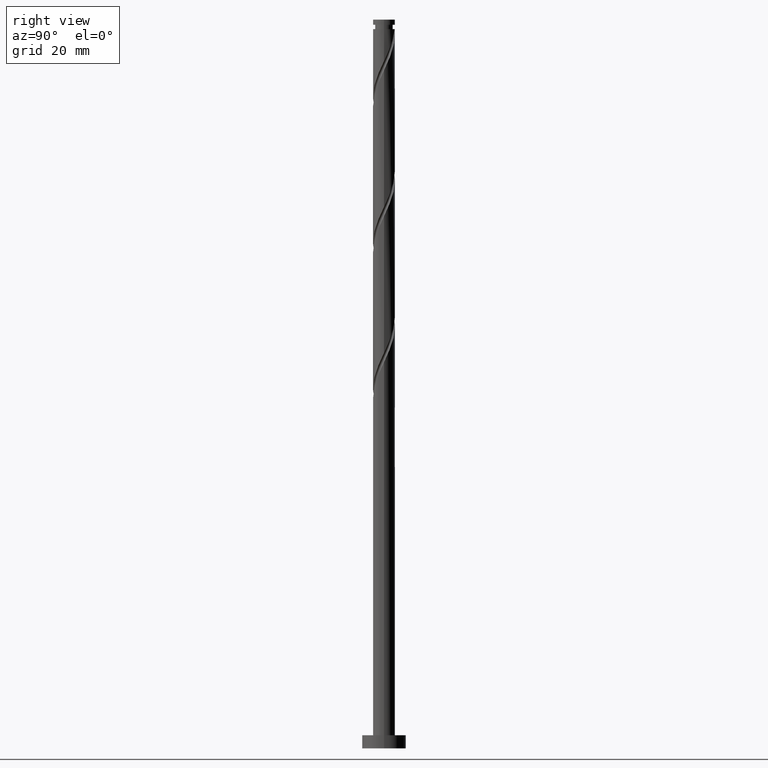
[diagram: clean part render]
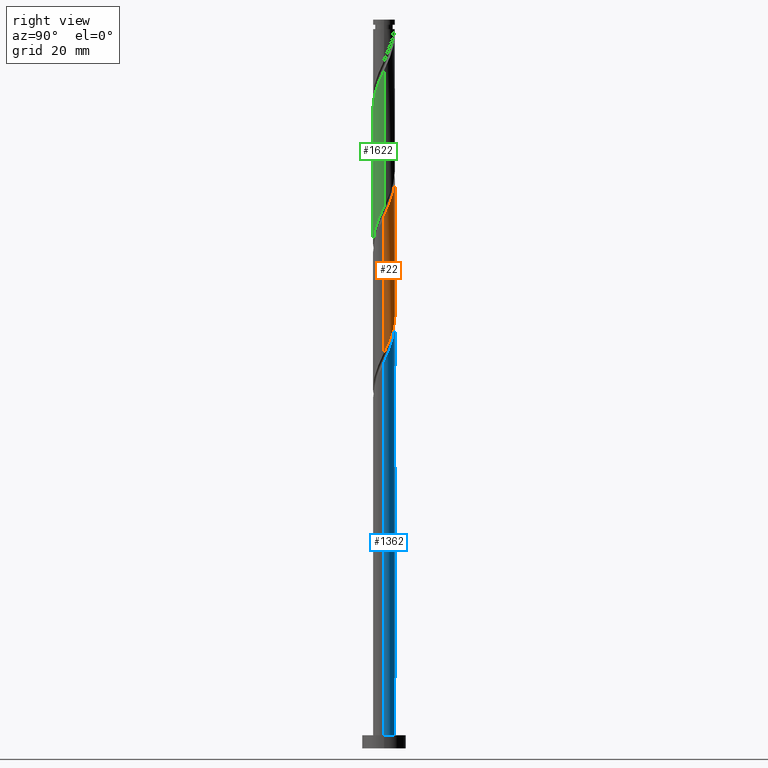
[diagram: same view with three faces highlighted in distinct colors, each labeled with its STEP entity id]
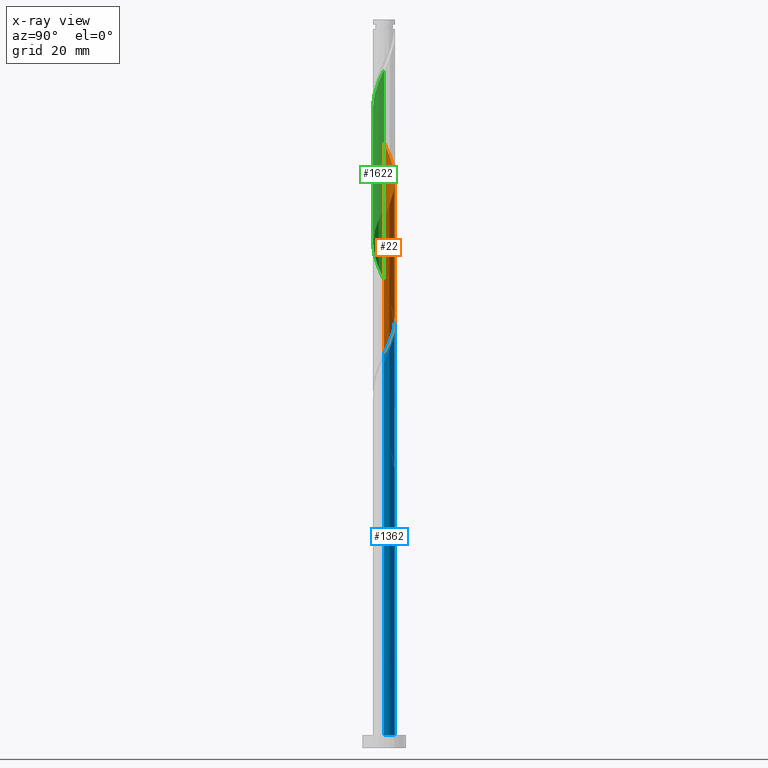
[diagram: x-ray of the same camera — body ghosted, the three highlighted faces saturated]
A machine part, right view with three faces highlighted in distinct colors.
The next image is the same camera in x-ray (body ghosted, the three faces saturated) — at least one of them is partly hidden behind the body in this view.
Their STEP definitions:

[orange] entity #22 — the highlighted cylindrical surface (edge-blend (fillet) strip) has radius 2.5 mm, axis along (-0, -0, -1).
#10 = CARTESIAN_POINT ( 'NONE',  ( 2.499999999999999112, -2.878603505396873590E-15, 90.39452221821650824 ) ) ;
#22 = ADVANCED_FACE ( 'NONE', ( #395 ), #497, .T. ) ;
#25 = AXIS2_PLACEMENT_3D ( 'NONE', #793, #1467, #1323 ) ;
#38 = CARTESIAN_POINT ( 'NONE',  ( 0.4820743581320903748, 2.475061956595794310, 128.9142888963397695 ) ) ;
#88 = CARTESIAN_POINT ( 'NONE',  ( -1.114648691668403746, 2.237757425227750119, 132.3865111185619696 ) ) ;
#108 = CARTESIAN_POINT ( 'NONE',  ( 2.500000000000003997, -5.831975933011805756E-16, 121.6007222411297164 ) ) ;
#118 = CARTESIAN_POINT ( 'NONE',  ( -1.106241244887207653, 2.265956240501270091, 101.1365111185620265 ) ) ;
#124 = EDGE_CURVE ( 'NONE', #1146, #1707, #540, .T. ) ;
#127 = CARTESIAN_POINT ( 'NONE',  ( 2.500000000000000000, 0.07685487914417803157, 90.55768590624462888 ) ) ;
#142 = CARTESIAN_POINT ( 'NONE',  ( -0.4820743581320875992, 2.475061956595790758, 99.74762222967312653 ) ) ;
#150 = CARTESIAN_POINT ( 'NONE',  ( -2.237757425227747010, 1.114648691668402858, 104.6087333407842124 ) ) ;
#175 = CARTESIAN_POINT ( 'NONE',  ( -0.1749450994641874590, 2.515496290581588745, 130.3031777852286552 ) ) ;
#215 = CARTESIAN_POINT ( 'NONE',  ( -2.370509098548532645, 0.7941578015096494303, 136.5531777852286552 ) ) ;
#229 = CARTESIAN_POINT ( 'NONE',  ( -2.265956240501272312, 1.106241244887210096, 135.8587333407842550 ) ) ;
#261 = CARTESIAN_POINT ( 'NONE',  ( 2.265956240501270536, 1.106241244887206321, 92.80317778522866945 ) ) ;
#312 = CARTESIAN_POINT ( 'NONE',  ( 2.450000000000003286, 0.4974937185533098716, 122.6642888963397695 ) ) ;
#341 = EDGE_LOOP ( 'NONE', ( #437, #731, #1045, #1030 ) ) ;
#368 = CARTESIAN_POINT ( 'NONE',  ( -2.084192795893800909, 1.380630431920286449, 135.1642888963397411 ) ) ;
#371 = CARTESIAN_POINT ( 'NONE',  ( -2.500000000000000000, 0.000000000000000000, 166.5200000000000102 ) ) ;
#387 = CARTESIAN_POINT ( 'NONE',  ( -0.7941578015096475429, 2.370509098548529536, 100.4420666741175410 ) ) ;
#395 = FACE_OUTER_BOUND ( 'NONE', #341, .T. ) ;
#399 = CARTESIAN_POINT ( 'NONE',  ( 2.370509098548529980, 0.7941578015096459886, 92.10873334078421237 ) ) ;
#422 = CARTESIAN_POINT ( 'NONE',  ( 0.1749450994641901791, 2.515496290581584304, 98.35873334078424080 ) ) ;
#437 = ORIENTED_EDGE ( 'NONE', *, *, #923, .F. ) ;
#441 = CARTESIAN_POINT ( 'NONE',  ( -2.500000000000003109, 3.372078392036312740E-15, 138.2673889077963736 ) ) ;
#456 = CARTESIAN_POINT ( 'NONE',  ( 2.500000000000003109, 0.2512594538148054668, 122.1341486103190022 ) ) ;
#466 =( BOUNDED_CURVE ( )  B_SPLINE_CURVE ( 2, ( #672, #1337, #1737, #682, #150, #825, #524, #1215, #1068, #118, #387, #142, #1608, #422, #922, #959, #532, #944, #688, #1491, #1480, #261, #399, #797, #1745, #127, #10 ),
 .UNSPECIFIED., .F., .T. ) 
 B_SPLINE_CURVE_WITH_KNOTS ( ( 3, 2, 2, 2, 2, 2, 2, 2, 2, 2, 2, 2, 2, 3 ),
 ( 0.6795317669814461281, 0.6875000000000000000, 0.6979166666666666297, 0.7083333333333333703, 0.7187500000000000000, 0.7291666666666666297, 0.7395833333333333703, 0.7500000000000000000, 0.7604166666666666297, 0.7708333333333333703, 0.7812500000000000000, 0.7916666666666666297, 0.8020833333333333703, 0.8045317669814464612 ),
 .UNSPECIFIED. ) 
 CURVE ( )  GEOMETRIC_REPRESENTATION_ITEM ( )  RATIONAL_B_SPLINE_CURVE ( ( 0.9062941362546422797, 0.9031415850403463619, 0.9090909090909219392, 0.9013135103398401959, 0.9090909090909219392, 0.9013135103398401959, 0.9090909090909219392, 0.9013135103398401959, 0.9090909090909219392, 0.9013135103398401959, 0.9090909090909219392, 0.9013135103398401959, 0.9090909090909219392, 0.9013135103398401959, 0.9090909090909219392, 0.9013135103398401959, 0.9090909090909219392, 0.9013135103398401959, 0.9090909090909219392, 0.9013135103398401959, 0.9090909090909219392, 0.9013135103398401959, 0.9090909090909219392, 0.9013135103398401959, 0.9090909090909219392, 0.9072628343904154402, 0.9062941362546420576 ) ) 
 REPRESENTATION_ITEM ( '' )  );
#481 = CARTESIAN_POINT ( 'NONE',  ( -1.902429351286330172, 1.655019618953364136, 134.4698444518953124 ) ) ;
#492 = CARTESIAN_POINT ( 'NONE',  ( -0.4974937185533094830, 2.450000000000003286, 130.9976222296730839 ) ) ;
#497 = CYLINDRICAL_SURFACE ( 'NONE', #25, 2.500000000000000000 ) ;
#524 = CARTESIAN_POINT ( 'NONE',  ( -1.873015379995219387, 1.655842198490352191, 103.2198444518953124 ) ) ;
#532 = CARTESIAN_POINT ( 'NONE',  ( 1.114648691668404634, 2.237757425227746122, 96.27540000745086957 ) ) ;
#534 =( BOUNDED_CURVE ( )  B_SPLINE_CURVE ( 2, ( #707, #456, #312, #568, #1110, #1678, #1545, #995, #1254, #863, #978, #38, #851, #175, #492, #750, #88, #646, #1296, #481, #368, #229, #215, #1031, #1190, #608, #1729 ),
 .UNSPECIFIED., .F., .T. ) 
 B_SPLINE_CURVE_WITH_KNOTS ( ( 3, 2, 2, 2, 2, 2, 2, 2, 2, 2, 2, 2, 2, 3 ),
 ( 0.4295317669814464612, 0.4375000000000000000, 0.4479166666666666297, 0.4583333333333333703, 0.4687500000000000000, 0.4791666666666666297, 0.4895833333333333703, 0.5000000000000000000, 0.5104166666666667407, 0.5208333333333332593, 0.5312500000000000000, 0.5416666666666667407, 0.5520833333333332593, 0.5545317669814462391 ),
 .UNSPECIFIED. ) 
 CURVE ( )  GEOMETRIC_REPRESENTATION_ITEM ( )  RATIONAL_B_SPLINE_CURVE ( ( 0.9062941362546486079, 0.9031415850403530232, 0.9090909090909286006, 0.9013135103398467463, 0.9090909090909286006, 0.9013135103398467463, 0.9090909090909286006, 0.9013135103398467463, 0.9090909090909286006, 0.9013135103398467463, 0.9090909090909286006, 0.9013135103398467463, 0.9090909090909286006, 0.9013135103398467463, 0.9090909090909286006, 0.9013135103398467463, 0.9090909090909286006, 0.9013135103398467463, 0.9090909090909286006, 0.9013135103398467463, 0.9090909090909286006, 0.9013135103398467463, 0.9090909090909286006, 0.9013135103398467463, 0.9090909090909286006, 0.9072628343904223236, 0.9062941362546488300 ) ) 
 REPRESENTATION_ITEM ( '' )  );
#540 = LINE ( 'NONE', #1082, #1276 ) ;
#568 = CARTESIAN_POINT ( 'NONE',  ( 2.384503709418420048, 0.8200423376424300637, 123.3587333407842266 ) ) ;
#608 = CARTESIAN_POINT ( 'NONE',  ( -2.500000000000003109, 0.07685487914418454025, 138.1042252197682387 ) ) ;
#610 = EDGE_CURVE ( 'NONE', #1411, #1370, #1298, .T. ) ;
#646 = CARTESIAN_POINT ( 'NONE',  ( -1.409255045694377539, 2.091011141037082410, 133.0809555630064835 ) ) ;
#649 = DIRECTION ( 'NONE',  ( -0.000000000000000000, -0.000000000000000000, -1.000000000000000000 ) ) ;
#672 = CARTESIAN_POINT ( 'NONE',  ( -2.499999999999998668, -4.740349668627579108E-15, 107.0611888848831796 ) ) ;
#682 = CARTESIAN_POINT ( 'NONE',  ( -2.384503709418414719, 0.8200423376424302857, 105.3031777852286837 ) ) ;
#688 = CARTESIAN_POINT ( 'NONE',  ( 1.655842198490352635, 1.873015379995218499, 94.88651111856199805 ) ) ;
#707 = CARTESIAN_POINT ( 'NONE',  ( 2.500000000000004441, -5.831975933011805756E-16, 121.6007222411297164 ) ) ;
#731 = ORIENTED_EDGE ( 'NONE', *, *, #124, .T. ) ;
#750 = CARTESIAN_POINT ( 'NONE',  ( -0.8200423376424307298, 2.384503709418420048, 131.6920666741175694 ) ) ;
#793 = CARTESIAN_POINT ( 'NONE',  ( 0.000000000000000000, 0.000000000000000000, 166.5200000000000102 ) ) ;
#797 = CARTESIAN_POINT ( 'NONE',  ( 2.475061956595790758, 0.4820743581320861004, 91.41428889633982635 ) ) ;
#825 = CARTESIAN_POINT ( 'NONE',  ( -2.091011141037078858, 1.409255045694376873, 103.9142888963397837 ) ) ;
#851 = CARTESIAN_POINT ( 'NONE',  ( 0.1535646293339514856, 2.495279123588689973, 129.6087333407841982 ) ) ;
#863 = CARTESIAN_POINT ( 'NONE',  ( 1.106241244887210762, 2.265956240501272312, 127.5254000074509406 ) ) ;
#867 = VECTOR ( 'NONE', #649, 1000.000000000000000 ) ;
#922 = CARTESIAN_POINT ( 'NONE',  ( 0.4974937185533105932, 2.449999999999999289, 97.66428889633976951 ) ) ;
#923 = EDGE_CURVE ( 'NONE', #1146, #1411, #534, .T. ) ;
#944 = CARTESIAN_POINT ( 'NONE',  ( 1.409255045694377539, 2.091011141037078858, 95.58095556300644091 ) ) ;
#959 = CARTESIAN_POINT ( 'NONE',  ( 0.8200423376424322841, 2.384503709418414275, 96.96984445189534085 ) ) ;
#978 = CARTESIAN_POINT ( 'NONE',  ( 0.7941578015096506515, 2.370509098548531757, 128.2198444518953124 ) ) ;
#995 = CARTESIAN_POINT ( 'NONE',  ( 1.655019618953364802, 1.902429351286329728, 126.1365111185620265 ) ) ;
#1030 = ORIENTED_EDGE ( 'NONE', *, *, #610, .F. ) ;
#1031 = CARTESIAN_POINT ( 'NONE',  ( -2.475061956595794310, 0.4820743581320888760, 137.2476222296731407 ) ) ;
#1040 = CARTESIAN_POINT ( 'NONE',  ( 2.499999999999999556, -2.878603505396873985E-15, 90.39452221821650824 ) ) ;
#1045 = ORIENTED_EDGE ( 'NONE', *, *, #1288, .F. ) ;
#1068 = CARTESIAN_POINT ( 'NONE',  ( -1.380630431920284007, 2.084192795893798689, 101.8309555630064409 ) ) ;
#1082 = CARTESIAN_POINT ( 'NONE',  ( 2.500000000000000000, 3.061616997868383141E-16, 166.5200000000000102 ) ) ;
#1110 = CARTESIAN_POINT ( 'NONE',  ( 2.237757425227751007, 1.114648691668402858, 124.0531777852286694 ) ) ;
#1146 = VERTEX_POINT ( 'NONE', #108 ) ;
#1190 = CARTESIAN_POINT ( 'NONE',  ( -2.495279123588689973, 0.1535646293339499036, 137.9420666741175410 ) ) ;
#1215 = CARTESIAN_POINT ( 'NONE',  ( -1.655019618953361027, 1.902429351286328618, 102.5254000074508838 ) ) ;
#1254 = CARTESIAN_POINT ( 'NONE',  ( 1.380630431920286894, 2.084192795893800465, 126.8309555630064125 ) ) ;
#1276 = VECTOR ( 'NONE', #1624, 1000.000000000000000 ) ;
#1288 = EDGE_CURVE ( 'NONE', #1370, #1707, #466, .T. ) ;
#1296 = CARTESIAN_POINT ( 'NONE',  ( -1.655842198490353301, 1.873015379995222274, 133.7754000074508554 ) ) ;
#1298 = LINE ( 'NONE', #371, #867 ) ;
#1323 = DIRECTION ( 'NONE',  ( -1.000000000000000000, 0.000000000000000000, 0.000000000000000000 ) ) ;
#1337 = CARTESIAN_POINT ( 'NONE',  ( -2.500000000000000888, 0.2512594538147974732, 106.5277625156939365 ) ) ;
#1370 = VERTEX_POINT ( 'NONE', #1408 ) ;
#1408 = CARTESIAN_POINT ( 'NONE',  ( -2.499999999999998668, -4.740349668627579108E-15, 107.0611888848831796 ) ) ;
#1411 = VERTEX_POINT ( 'NONE', #441 ) ;
#1467 = DIRECTION ( 'NONE',  ( -0.000000000000000000, -0.000000000000000000, -1.000000000000000000 ) ) ;
#1480 = CARTESIAN_POINT ( 'NONE',  ( 2.084192795893798689, 1.380630431920283785, 93.49762222967309810 ) ) ;
#1491 = CARTESIAN_POINT ( 'NONE',  ( 1.902429351286329062, 1.655019618953360361, 94.19206667411756939 ) ) ;
#1545 = CARTESIAN_POINT ( 'NONE',  ( 1.873015379995223606, 1.655842198490352857, 125.4420666741175552 ) ) ;
#1608 = CARTESIAN_POINT ( 'NONE',  ( -0.1535646293339486268, 2.495279123588685977, 99.05317778522866945 ) ) ;
#1624 = DIRECTION ( 'NONE',  ( -0.000000000000000000, -0.000000000000000000, -1.000000000000000000 ) ) ;
#1678 = CARTESIAN_POINT ( 'NONE',  ( 2.091011141037083298, 1.409255045694376873, 124.7476222296731123 ) ) ;
#1707 = VERTEX_POINT ( 'NONE', #1040 ) ;
#1729 = CARTESIAN_POINT ( 'NONE',  ( -2.500000000000003109, 3.372078392036312740E-15, 138.2673889077963736 ) ) ;
#1737 = CARTESIAN_POINT ( 'NONE',  ( -2.449999999999999289, 0.4974937185533100381, 105.9976222296731123 ) ) ;
#1745 = CARTESIAN_POINT ( 'NONE',  ( 2.495279123588685977, 0.1535646293339474888, 90.71984445189534085 ) ) ;

[blue] entity #1362 — the highlighted cylindrical surface (edge-blend (fillet) strip) has radius 2.5 mm, axis along (-0, -0, -1).
#3 = CARTESIAN_POINT ( 'NONE',  ( -2.091011141037078858, 1.409255045694376873, 70.58095556300646933 ) ) ;
#13 = VERTEX_POINT ( 'NONE', #774 ) ;
#14 = CARTESIAN_POINT ( 'NONE',  ( -0.8200423376424307298, 2.384503709418420048, 98.35873334078424080 ) ) ;
#17 = CARTESIAN_POINT ( 'NONE',  ( -1.106241244887207653, 2.265956240501270091, 67.80317778522868366 ) ) ;
#26 = CARTESIAN_POINT ( 'NONE',  ( 0.000000000000000000, 0.000000000000000000, 166.5200000000000102 ) ) ;
#71 = ORIENTED_EDGE ( 'NONE', *, *, #160, .F. ) ;
#73 = CARTESIAN_POINT ( 'NONE',  ( -2.495279123588689973, 0.1535646293339499036, 71.27540000745086957 ) ) ;
#81 = CARTESIAN_POINT ( 'NONE',  ( 2.500000000000002665, 0.2512594538148071877, 88.80081527698565935 ) ) ;
#85 = EDGE_CURVE ( 'NONE', #1180, #1402, #1691, .T. ) ;
#96 = LINE ( 'NONE', #633, #502 ) ;
#98 = ORIENTED_EDGE ( 'NONE', *, *, #710, .F. ) ;
#132 = DIRECTION ( 'NONE',  ( -1.000000000000000000, 0.000000000000000000, 0.000000000000000000 ) ) ;
#134 = CARTESIAN_POINT ( 'NONE',  ( -2.384503709418414719, 0.8200423376424302857, 71.96984445189536928 ) ) ;
#152 = ORIENTED_EDGE ( 'NONE', *, *, #478, .F. ) ;
#157 = FACE_OUTER_BOUND ( 'NONE', #1094, .T. ) ;
#160 = EDGE_CURVE ( 'NONE', #1315, #174, #96, .T. ) ;
#174 = VERTEX_POINT ( 'NONE', #910 ) ;
#202 = CARTESIAN_POINT ( 'NONE',  ( -0.8200423376424307298, 2.384503709418420048, 65.02540000745089799 ) ) ;
#267 = CARTESIAN_POINT ( 'NONE',  ( 0.000000000000000000, 0.000000000000000000, 64.33095556300644091 ) ) ;
#270 = CARTESIAN_POINT ( 'NONE',  ( 0.4974937185533105932, 2.449999999999999289, 64.33095556300644091 ) ) ;
#287 = CARTESIAN_POINT ( 'NONE',  ( -2.475061956595794310, 0.4820743581320888760, 103.9142888963397837 ) ) ;
#305 = CARTESIAN_POINT ( 'NONE',  ( -1.114648691668403746, 2.237757425227750119, 65.71984445189531243 ) ) ;
#336 = CARTESIAN_POINT ( 'NONE',  ( -2.084192795893800909, 1.380630431920286449, 68.49762222967309810 ) ) ;
#344 = CARTESIAN_POINT ( 'NONE',  ( 1.106241244887210762, 2.265956240501272312, 94.19206667411755518 ) ) ;
#346 =( BOUNDED_CURVE ( )  B_SPLINE_CURVE ( 2, ( #1584, #81, #899, #1451, #1160, #526, #1474, #1702, #769, #344, #484, #1629, #962, #559, #1637, #14, #1364, #391, #953, #938, #926, #1101, #1087, #287, #409, #1243, #1484 ),
 .UNSPECIFIED., .F., .T. ) 
 B_SPLINE_CURVE_WITH_KNOTS ( ( 3, 2, 2, 2, 2, 2, 2, 2, 2, 2, 2, 2, 2, 3 ),
 ( 0.1795317669814465167, 0.1875000000000000000, 0.1979166666666666297, 0.2083333333333333703, 0.2187500000000000000, 0.2291666666666666297, 0.2395833333333333703, 0.2500000000000000000, 0.2604166666666666297, 0.2708333333333333703, 0.2812500000000000000, 0.2916666666666666297, 0.3020833333333333703, 0.3045317669814464612 ),
 .UNSPECIFIED. ) 
 CURVE ( )  GEOMETRIC_REPRESENTATION_ITEM ( )  RATIONAL_B_SPLINE_CURVE ( ( 0.9062941362546486079, 0.9031415850403531342, 0.9090909090909286006, 0.9013135103398467463, 0.9090909090909286006, 0.9013135103398467463, 0.9090909090909286006, 0.9013135103398467463, 0.9090909090909286006, 0.9013135103398467463, 0.9090909090909286006, 0.9013135103398467463, 0.9090909090909286006, 0.9013135103398467463, 0.9090909090909286006, 0.9013135103398467463, 0.9090909090909286006, 0.9013135103398467463, 0.9090909090909286006, 0.9013135103398467463, 0.9090909090909286006, 0.9013135103398467463, 0.9090909090909286006, 0.9013135103398467463, 0.9090909090909286006, 0.9072628343904221015, 0.9062941362546486079 ) ) 
 REPRESENTATION_ITEM ( '' )  );
#352 = LINE ( 'NONE', #780, #1444 ) ;
#391 = CARTESIAN_POINT ( 'NONE',  ( -1.409255045694377539, 2.091011141037082410, 99.74762222967309810 ) ) ;
#409 = CARTESIAN_POINT ( 'NONE',  ( -2.495279123588689973, 0.1535646293339499036, 104.6087333407841982 ) ) ;
#449 = CARTESIAN_POINT ( 'NONE',  ( -1.902429351286330172, 1.655019618953364136, 67.80317778522866945 ) ) ;
#473 = CARTESIAN_POINT ( 'NONE',  ( -2.265956240501272312, 1.106241244887210096, 69.19206667411756939 ) ) ;
#477 =( BOUNDED_CURVE ( )  B_SPLINE_CURVE ( 2, ( #609, #202, #305, #1256, #843, #449, #336, #473, #1414, #1017, #73, #1547, #734 ),
 .UNSPECIFIED., .F., .T. ) 
 B_SPLINE_CURVE_WITH_KNOTS ( ( 3, 2, 2, 2, 2, 2, 3 ),
 ( 0.000000000000000000, 0.01041666666666662966, 0.02083333333333337034, 0.03125000000000000000, 0.04166666666666662966, 0.05208333333333337034, 0.05453176698144644730 ),
 .UNSPECIFIED. ) 
 CURVE ( )  GEOMETRIC_REPRESENTATION_ITEM ( )  RATIONAL_B_SPLINE_CURVE ( ( 0.9090909090909286006, 0.9013135103398467463, 0.9090909090909286006, 0.9013135103398467463, 0.9090909090909286006, 0.9013135103398467463, 0.9090909090909286006, 0.9013135103398467463, 0.9090909090909286006, 0.9013135103398467463, 0.9090909090909286006, 0.9072628343904221015, 0.9062941362546486079 ) ) 
 REPRESENTATION_ITEM ( '' )  );
#478 = EDGE_CURVE ( 'NONE', #1180, #839, #477, .T. ) ;
#484 = CARTESIAN_POINT ( 'NONE',  ( 0.7941578015096506515, 2.370509098548531757, 94.88651111856196962 ) ) ;
#502 = VECTOR ( 'NONE', #1177, 1000.000000000000000 ) ;
#526 = CARTESIAN_POINT ( 'NONE',  ( 2.091011141037083298, 1.409255045694376873, 91.41428889633981214 ) ) ;
#535 = VERTEX_POINT ( 'NONE', #1679 ) ;
#542 = CARTESIAN_POINT ( 'NONE',  ( -0.1535646293339486268, 2.495279123588685977, 65.71984445189532664 ) ) ;
#550 = CARTESIAN_POINT ( 'NONE',  ( -2.237757425227747010, 1.114648691668402858, 71.27540000745085536 ) ) ;
#556 = CARTESIAN_POINT ( 'NONE',  ( -0.7941578015096475429, 2.370509098548529536, 67.10873334078422658 ) ) ;
#559 = CARTESIAN_POINT ( 'NONE',  ( -0.1749450994641874590, 2.515496290581588745, 96.96984445189534085 ) ) ;
#565 = CARTESIAN_POINT ( 'NONE',  ( 0.000000000000000000, 0.000000000000000000, 3.000000000000000000 ) ) ;
#578 = EDGE_CURVE ( 'NONE', #13, #1157, #352, .T. ) ;
#588 = DIRECTION ( 'NONE',  ( 0.000000000000000000, 0.000000000000000000, 1.000000000000000000 ) ) ;
#609 = CARTESIAN_POINT ( 'NONE',  ( -0.4974937185533096495, 2.450000000000003286, 64.33095556300644091 ) ) ;
#633 = CARTESIAN_POINT ( 'NONE',  ( -2.500000000000000000, 0.000000000000000000, 166.5200000000000102 ) ) ;
#665 = CARTESIAN_POINT ( 'NONE',  ( -2.499999999999998668, 2.235590774321208427E-15, 73.72785555154982262 ) ) ;
#695 = CYLINDRICAL_SURFACE ( 'NONE', #1245, 2.500000000000000000 ) ;
#703 = CIRCLE ( 'NONE', #729, 2.500000000000000000 ) ;
#710 = EDGE_CURVE ( 'NONE', #13, #1315, #346, .T. ) ;
#729 = AXIS2_PLACEMENT_3D ( 'NONE', #565, #588, #1106 ) ;
#734 = CARTESIAN_POINT ( 'NONE',  ( -2.500000000000003997, -7.925505755118609627E-15, 71.60072224112973061 ) ) ;
#743 = CARTESIAN_POINT ( 'NONE',  ( -2.500000000000000000, 0.000000000000000000, 166.5200000000000102 ) ) ;
#769 = CARTESIAN_POINT ( 'NONE',  ( 1.380630431920286894, 2.084192795893800465, 93.49762222967312653 ) ) ;
#774 = CARTESIAN_POINT ( 'NONE',  ( 2.500000000000003997, -5.831975933011805756E-16, 88.26738890779638780 ) ) ;
#780 = CARTESIAN_POINT ( 'NONE',  ( 2.500000000000000000, 3.061616997868383141E-16, 166.5200000000000102 ) ) ;
#805 = DIRECTION ( 'NONE',  ( 0.000000000000000000, -0.000000000000000000, -1.000000000000000000 ) ) ;
#832 = DIRECTION ( 'NONE',  ( -0.000000000000000000, -0.000000000000000000, -1.000000000000000000 ) ) ;
#839 = VERTEX_POINT ( 'NONE', #1385 ) ;
#843 = CARTESIAN_POINT ( 'NONE',  ( -1.655842198490353301, 1.873015379995222274, 67.10873334078421237 ) ) ;
#899 = CARTESIAN_POINT ( 'NONE',  ( 2.450000000000003286, 0.4974937185533098716, 89.33095556300642670 ) ) ;
#910 = CARTESIAN_POINT ( 'NONE',  ( -2.499999999999998668, 2.235590774321208427E-15, 73.72785555154980841 ) ) ;
#926 = CARTESIAN_POINT ( 'NONE',  ( -2.084192795893800909, 1.380630431920286449, 101.8309555630064551 ) ) ;
#935 = CARTESIAN_POINT ( 'NONE',  ( 0.1749450994641901791, 2.515496290581584304, 65.02540000745089799 ) ) ;
#938 = CARTESIAN_POINT ( 'NONE',  ( -1.902429351286330172, 1.655019618953364136, 101.1365111185620123 ) ) ;
#953 = CARTESIAN_POINT ( 'NONE',  ( -1.655842198490353301, 1.873015379995222274, 100.4420666741175552 ) ) ;
#961 = ORIENTED_EDGE ( 'NONE', *, *, #1153, .F. ) ;
#962 = CARTESIAN_POINT ( 'NONE',  ( 0.1535646293339514856, 2.495279123588689973, 96.27540000745086957 ) ) ;
#983 = DIRECTION ( 'NONE',  ( -1.000000000000000000, 0.000000000000000000, 0.000000000000000000 ) ) ;
#1015 = DIRECTION ( 'NONE',  ( -0.000000000000000000, -0.000000000000000000, -1.000000000000000000 ) ) ;
#1017 = CARTESIAN_POINT ( 'NONE',  ( -2.475061956595794310, 0.4820743581320888760, 70.58095556300645512 ) ) ;
#1043 = AXIS2_PLACEMENT_3D ( 'NONE', #267, #805, #132 ) ;
#1077 = CARTESIAN_POINT ( 'NONE',  ( -1.655019618953361027, 1.902429351286328618, 69.19206667411758360 ) ) ;
#1087 = CARTESIAN_POINT ( 'NONE',  ( -2.370509098548532645, 0.7941578015096494303, 103.2198444518952982 ) ) ;
#1092 = CARTESIAN_POINT ( 'NONE',  ( -1.380630431920284007, 2.084192795893798689, 68.49762222967311232 ) ) ;
#1094 = EDGE_LOOP ( 'NONE', ( #98, #1117, #1570, #961, #152, #1189, #1227, #71 ) ) ;
#1101 = CARTESIAN_POINT ( 'NONE',  ( -2.265956240501272312, 1.106241244887210096, 102.5254000074508980 ) ) ;
#1106 = DIRECTION ( 'NONE',  ( 1.000000000000000000, 0.000000000000000000, 0.000000000000000000 ) ) ;
#1117 = ORIENTED_EDGE ( 'NONE', *, *, #578, .T. ) ;
#1147 = LINE ( 'NONE', #743, #1154 ) ;
#1153 = EDGE_CURVE ( 'NONE', #839, #535, #1147, .T. ) ;
#1154 = VECTOR ( 'NONE', #1015, 1000.000000000000000 ) ;
#1157 = VERTEX_POINT ( 'NONE', #1600 ) ;
#1160 = CARTESIAN_POINT ( 'NONE',  ( 2.237757425227751007, 1.114648691668402858, 90.71984445189531243 ) ) ;
#1177 = DIRECTION ( 'NONE',  ( -0.000000000000000000, -0.000000000000000000, -1.000000000000000000 ) ) ;
#1180 = VERTEX_POINT ( 'NONE', #1427 ) ;
#1189 = ORIENTED_EDGE ( 'NONE', *, *, #85, .T. ) ;
#1207 = CARTESIAN_POINT ( 'NONE',  ( -1.873015379995219387, 1.655842198490352191, 69.88651111856201226 ) ) ;
#1227 = ORIENTED_EDGE ( 'NONE', *, *, #1301, .F. ) ;
#1232 = CARTESIAN_POINT ( 'NONE',  ( -2.449999999999999289, 0.4974937185533100381, 72.66428889633975530 ) ) ;
#1243 = CARTESIAN_POINT ( 'NONE',  ( -2.500000000000003997, 0.07685487914418023814, 104.7708918864349101 ) ) ;
#1245 = AXIS2_PLACEMENT_3D ( 'NONE', #26, #832, #983 ) ;
#1256 = CARTESIAN_POINT ( 'NONE',  ( -1.409255045694377539, 2.091011141037082410, 66.41428889633979793 ) ) ;
#1301 = EDGE_CURVE ( 'NONE', #174, #1402, #1439, .T. ) ;
#1315 = VERTEX_POINT ( 'NONE', #1641 ) ;
#1362 = ADVANCED_FACE ( 'NONE', ( #157 ), #695, .T. ) ;
#1364 = CARTESIAN_POINT ( 'NONE',  ( -1.114648691668403746, 2.237757425227750119, 99.05317778522868366 ) ) ;
#1385 = CARTESIAN_POINT ( 'NONE',  ( -2.500000000000003553, -7.925505755118609627E-15, 71.60072224112973061 ) ) ;
#1402 = VERTEX_POINT ( 'NONE', #1520 ) ;
#1414 = CARTESIAN_POINT ( 'NONE',  ( -2.370509098548532645, 0.7941578015096494303, 69.88651111856199805 ) ) ;
#1427 = CARTESIAN_POINT ( 'NONE',  ( -0.4974937185533096495, 2.450000000000003286, 64.33095556300644091 ) ) ;
#1439 =( BOUNDED_CURVE ( )  B_SPLINE_CURVE ( 2, ( #665, #1499, #1232, #134, #550, #3, #1207, #1077, #1092, #17, #556, #1617, #542, #935, #270 ),
 .UNSPECIFIED., .F., .T. ) 
 B_SPLINE_CURVE_WITH_KNOTS ( ( 3, 2, 2, 2, 2, 2, 2, 3 ),
 ( 0.9295317669814464612, 0.9375000000000000000, 0.9479166666666666297, 0.9583333333333333703, 0.9687500000000000000, 0.9791666666666666297, 0.9895833333333333703, 1.000000000000000000 ),
 .UNSPECIFIED. ) 
 CURVE ( )  GEOMETRIC_REPRESENTATION_ITEM ( )  RATIONAL_B_SPLINE_CURVE ( ( 0.9062941362546420576, 0.9031415850403465839, 0.9090909090909219392, 0.9013135103398401959, 0.9090909090909219392, 0.9013135103398401959, 0.9090909090909219392, 0.9013135103398401959, 0.9090909090909219392, 0.9013135103398401959, 0.9090909090909219392, 0.9013135103398401959, 0.9090909090909219392, 0.9013135103398401959, 0.9090909090909219392 ) ) 
 REPRESENTATION_ITEM ( '' )  );
#1444 = VECTOR ( 'NONE', #1719, 1000.000000000000000 ) ;
#1451 = CARTESIAN_POINT ( 'NONE',  ( 2.384503709418420048, 0.8200423376424300637, 90.02540000745091220 ) ) ;
#1474 = CARTESIAN_POINT ( 'NONE',  ( 1.873015379995223606, 1.655842198490352857, 92.10873334078416974 ) ) ;
#1484 = CARTESIAN_POINT ( 'NONE',  ( -2.500000000000003997, 6.018898238557055436E-15, 104.9340555744630450 ) ) ;
#1499 = CARTESIAN_POINT ( 'NONE',  ( -2.499999999999998224, 0.2512594538148077983, 73.19442918236056528 ) ) ;
#1520 = CARTESIAN_POINT ( 'NONE',  ( 0.4974937185533105932, 2.449999999999999289, 64.33095556300644091 ) ) ;
#1547 = CARTESIAN_POINT ( 'NONE',  ( -2.500000000000003997, 0.07685487914418066835, 71.43755855310156733 ) ) ;
#1570 = ORIENTED_EDGE ( 'NONE', *, *, #1621, .T. ) ;
#1584 = CARTESIAN_POINT ( 'NONE',  ( 2.500000000000004441, -5.831975933011805756E-16, 88.26738890779638780 ) ) ;
#1600 = CARTESIAN_POINT ( 'NONE',  ( 2.500000000000000000, 3.061616997868383141E-16, 3.000000000000000000 ) ) ;
#1617 = CARTESIAN_POINT ( 'NONE',  ( -0.4820743581320875992, 2.475061956595790758, 66.41428889633979793 ) ) ;
#1621 = EDGE_CURVE ( 'NONE', #1157, #535, #703, .T. ) ;
#1629 = CARTESIAN_POINT ( 'NONE',  ( 0.4820743581320903748, 2.475061956595794310, 95.58095556300645512 ) ) ;
#1637 = CARTESIAN_POINT ( 'NONE',  ( -0.4974937185533094830, 2.450000000000003286, 97.66428889633976951 ) ) ;
#1641 = CARTESIAN_POINT ( 'NONE',  ( -2.500000000000003553, 6.018898238557055436E-15, 104.9340555744630450 ) ) ;
#1679 = CARTESIAN_POINT ( 'NONE',  ( -2.500000000000000000, 0.000000000000000000, 3.000000000000000000 ) ) ;
#1691 = CIRCLE ( 'NONE', #1043, 2.500000000000000000 ) ;
#1702 = CARTESIAN_POINT ( 'NONE',  ( 1.655019618953364802, 1.902429351286329728, 92.80317778522865524 ) ) ;
#1719 = DIRECTION ( 'NONE',  ( -0.000000000000000000, -0.000000000000000000, -1.000000000000000000 ) ) ;

[green] entity #1622 — the highlighted cylindrical surface (edge-blend (fillet) strip) has radius 2.5 mm, axis along (-0, -0, -1).
#6 = CARTESIAN_POINT ( 'NONE',  ( -1.409255045694376873, -2.091011141037078858, 112.2476222296731123 ) ) ;
#20 = CARTESIAN_POINT ( 'NONE',  ( 1.380630431920282897, -2.084192795893798689, 118.4976222296731123 ) ) ;
#39 = CARTESIAN_POINT ( 'NONE',  ( -1.106241244887210540, -2.265956240501271868, 144.1920666741175694 ) ) ;
#51 = CARTESIAN_POINT ( 'NONE',  ( 1.409255045694376873, -2.091011141037083298, 149.7476222296731407 ) ) ;
#57 = ORIENTED_EDGE ( 'NONE', *, *, #1513, .F. ) ;
#59 = CARTESIAN_POINT ( 'NONE',  ( 1.902429351286330172, -1.655019618953364136, 151.1365111185620265 ) ) ;
#65 = CARTESIAN_POINT ( 'NONE',  ( -2.084192795893798689, -1.380630431920284007, 110.1642888963397695 ) ) ;
#68 = CARTESIAN_POINT ( 'NONE',  ( -2.384503709418420048, -0.8200423376424301747, 140.0254000074508838 ) ) ;
#145 = CARTESIAN_POINT ( 'NONE',  ( 2.499999999999999112, -0.2512594538148046897, 123.1944291823605795 ) ) ;
#161 = CARTESIAN_POINT ( 'NONE',  ( -0.4974937185533100381, -2.449999999999999289, 114.3309555630064125 ) ) ;
#176 = CARTESIAN_POINT ( 'NONE',  ( -0.1535646293339500146, -2.495279123588689973, 146.2754000074509122 ) ) ;
#180 = CARTESIAN_POINT ( 'NONE',  ( 2.500000000000000000, 3.061616997868383141E-16, 166.5200000000000102 ) ) ;
#236 =( BOUNDED_CURVE ( )  B_SPLINE_CURVE ( 2, ( #1422, #709, #1267, #68, #726, #980, #989, #1533, #717, #39, #1557, #575, #176, #1144, #1120, #1662, #1540, #51, #586, #59, #320, #858, #1405, #1275, #595, #604, #997 ),
 .UNSPECIFIED., .F., .T. ) 
 B_SPLINE_CURVE_WITH_KNOTS ( ( 3, 2, 2, 2, 2, 2, 2, 2, 2, 2, 2, 2, 2, 3 ),
 ( 0.5545317669814462391, 0.5625000000000000000, 0.5729166666666667407, 0.5833333333333332593, 0.5937500000000000000, 0.6041666666666667407, 0.6145833333333332593, 0.6250000000000000000, 0.6354166666666667407, 0.6458333333333332593, 0.6562500000000000000, 0.6666666666666667407, 0.6770833333333332593, 0.6795317669814460171 ),
 .UNSPECIFIED. ) 
 CURVE ( )  GEOMETRIC_REPRESENTATION_ITEM ( )  RATIONAL_B_SPLINE_CURVE ( ( 0.9062941362546488300, 0.9031415850403530232, 0.9090909090909286006, 0.9013135103398467463, 0.9090909090909286006, 0.9013135103398467463, 0.9090909090909286006, 0.9013135103398467463, 0.9090909090909286006, 0.9013135103398467463, 0.9090909090909286006, 0.9013135103398467463, 0.9090909090909286006, 0.9013135103398467463, 0.9090909090909286006, 0.9013135103398467463, 0.9090909090909286006, 0.9013135103398467463, 0.9090909090909286006, 0.9013135103398467463, 0.9090909090909286006, 0.9013135103398467463, 0.9090909090909286006, 0.9013135103398467463, 0.9090909090909286006, 0.9072628343904225456, 0.9062941362546490520 ) ) 
 REPRESENTATION_ITEM ( '' )  );
#294 = CARTESIAN_POINT ( 'NONE',  ( 0.1535646293339475721, -2.495279123588685977, 115.7198444518953409 ) ) ;
#302 = CARTESIAN_POINT ( 'NONE',  ( -2.495279123588685977, -0.1535646293339484048, 107.3865111185620123 ) ) ;
#320 = CARTESIAN_POINT ( 'NONE',  ( 2.084192795893800021, -1.380630431920287338, 151.8309555630064551 ) ) ;
#371 = CARTESIAN_POINT ( 'NONE',  ( -2.500000000000000000, 0.000000000000000000, 166.5200000000000102 ) ) ;
#402 = CARTESIAN_POINT ( 'NONE',  ( 1.655019618953360361, -1.902429351286328840, 119.1920666741175978 ) ) ;
#435 = DIRECTION ( 'NONE',  ( -0.000000000000000000, -0.000000000000000000, -1.000000000000000000 ) ) ;
#441 = CARTESIAN_POINT ( 'NONE',  ( -2.500000000000003109, 3.372078392036312740E-15, 138.2673889077963736 ) ) ;
#446 = VERTEX_POINT ( 'NONE', #1127 ) ;
#505 = EDGE_CURVE ( 'NONE', #1411, #1610, #236, .T. ) ;
#539 = AXIS2_PLACEMENT_3D ( 'NONE', #1674, #435, #991 ) ;
#545 = CARTESIAN_POINT ( 'NONE',  ( -1.655842198490352413, -1.873015379995219165, 111.5531777852286552 ) ) ;
#553 = CARTESIAN_POINT ( 'NONE',  ( 2.091011141037078858, -1.409255045694377539, 120.5809555630064693 ) ) ;
#575 = CARTESIAN_POINT ( 'NONE',  ( -0.4820743581320890425, -2.475061956595794310, 145.5809555630065120 ) ) ;
#586 = CARTESIAN_POINT ( 'NONE',  ( 1.655842198490353079, -1.873015379995223162, 150.4420666741174841 ) ) ;
#595 = CARTESIAN_POINT ( 'NONE',  ( 2.495279123588689973, -0.1535646293339512636, 154.6087333407841982 ) ) ;
#603 = CARTESIAN_POINT ( 'NONE',  ( -1.902429351286329062, -1.655019618953360361, 110.8587333407842408 ) ) ;
#604 = CARTESIAN_POINT ( 'NONE',  ( 2.500000000000002220, -0.07685487914419299182, 154.7708918864348675 ) ) ;
#610 = EDGE_CURVE ( 'NONE', #1411, #1370, #1298, .T. ) ;
#649 = DIRECTION ( 'NONE',  ( -0.000000000000000000, -0.000000000000000000, -1.000000000000000000 ) ) ;
#674 = CARTESIAN_POINT ( 'NONE',  ( 0.7941578015096470988, -2.370509098548529980, 117.1087333407842266 ) ) ;
#684 = CARTESIAN_POINT ( 'NONE',  ( 1.873015379995219165, -1.655842198490352857, 119.8865111185619696 ) ) ;
#706 = ORIENTED_EDGE ( 'NONE', *, *, #760, .F. ) ;
#709 = CARTESIAN_POINT ( 'NONE',  ( -2.500000000000004885, -0.2512594538148028578, 138.8008152769857020 ) ) ;
#715 = CARTESIAN_POINT ( 'NONE',  ( -2.499999999999998668, -4.740349668627579108E-15, 107.0611888848831796 ) ) ;
#717 = CARTESIAN_POINT ( 'NONE',  ( -1.380630431920286449, -2.084192795893800465, 143.4976222296731123 ) ) ;
#726 = CARTESIAN_POINT ( 'NONE',  ( -2.237757425227750119, -1.114648691668403746, 140.7198444518953409 ) ) ;
#732 = CARTESIAN_POINT ( 'NONE',  ( -2.475061956595790758, -0.4820743581320868776, 108.0809555630064978 ) ) ;
#760 = EDGE_CURVE ( 'NONE', #446, #1370, #1634, .T. ) ;
#809 = CARTESIAN_POINT ( 'NONE',  ( 1.106241244887207209, -2.265956240501270091, 117.8031777852287121 ) ) ;
#858 = CARTESIAN_POINT ( 'NONE',  ( 2.265956240501271868, -1.106241244887210762, 152.5254000074509690 ) ) ;
#867 = VECTOR ( 'NONE', #649, 1000.000000000000000 ) ;
#946 = CARTESIAN_POINT ( 'NONE',  ( 2.499999999999999556, -2.878603505396873985E-15, 123.7278555515498510 ) ) ;
#967 = CYLINDRICAL_SURFACE ( 'NONE', #539, 2.500000000000000000 ) ;
#980 = CARTESIAN_POINT ( 'NONE',  ( -2.091011141037083298, -1.409255045694377317, 141.4142888963397411 ) ) ;
#989 = CARTESIAN_POINT ( 'NONE',  ( -1.873015379995222496, -1.655842198490353079, 142.1087333407842266 ) ) ;
#991 = DIRECTION ( 'NONE',  ( -1.000000000000000000, 0.000000000000000000, 0.000000000000000000 ) ) ;
#997 = CARTESIAN_POINT ( 'NONE',  ( 2.500000000000003553, -1.420609522143901394E-15, 154.9340555744630592 ) ) ;
#1004 = CARTESIAN_POINT ( 'NONE',  ( -2.265956240501270091, -1.106241244887207209, 109.4698444518953693 ) ) ;
#1095 = CARTESIAN_POINT ( 'NONE',  ( -0.1749450994641909840, -2.515496290581584304, 115.0254000074508980 ) ) ;
#1113 = CARTESIAN_POINT ( 'NONE',  ( 2.500000000000003553, -1.420609522143901394E-15, 154.9340555744630592 ) ) ;
#1120 = CARTESIAN_POINT ( 'NONE',  ( 0.4974937185533099271, -2.450000000000003286, 147.6642888963397411 ) ) ;
#1122 = LINE ( 'NONE', #180, #1508 ) ;
#1127 = CARTESIAN_POINT ( 'NONE',  ( 2.499999999999999556, -2.878603505396873985E-15, 123.7278555515498510 ) ) ;
#1131 = FACE_OUTER_BOUND ( 'NONE', #1142, .T. ) ;
#1135 = ORIENTED_EDGE ( 'NONE', *, *, #610, .T. ) ;
#1142 = EDGE_LOOP ( 'NONE', ( #57, #1325, #1135, #706 ) ) ;
#1144 = CARTESIAN_POINT ( 'NONE',  ( 0.1749450994641890966, -2.515496290581588745, 146.9698444518953693 ) ) ;
#1219 = CARTESIAN_POINT ( 'NONE',  ( -1.114648691668402858, -2.237757425227747010, 112.9420666741175268 ) ) ;
#1228 = CARTESIAN_POINT ( 'NONE',  ( 0.4820743581320862114, -2.475061956595790758, 116.4142888963398121 ) ) ;
#1234 = CARTESIAN_POINT ( 'NONE',  ( 2.237757425227746122, -1.114648691668404634, 121.2754000074508838 ) ) ;
#1267 = CARTESIAN_POINT ( 'NONE',  ( -2.450000000000003286, -0.4974937185533100381, 139.3309555630063983 ) ) ;
#1270 = DIRECTION ( 'NONE',  ( -0.000000000000000000, -0.000000000000000000, -1.000000000000000000 ) ) ;
#1275 = CARTESIAN_POINT ( 'NONE',  ( 2.475061956595793866, -0.4820743581320903193, 153.9142888963398264 ) ) ;
#1298 = LINE ( 'NONE', #371, #867 ) ;
#1325 = ORIENTED_EDGE ( 'NONE', *, *, #505, .F. ) ;
#1370 = VERTEX_POINT ( 'NONE', #1408 ) ;
#1405 = CARTESIAN_POINT ( 'NONE',  ( 2.370509098548532645, -0.7941578015096506515, 153.2198444518953409 ) ) ;
#1408 = CARTESIAN_POINT ( 'NONE',  ( -2.499999999999998668, -4.740349668627579108E-15, 107.0611888848831796 ) ) ;
#1411 = VERTEX_POINT ( 'NONE', #441 ) ;
#1422 = CARTESIAN_POINT ( 'NONE',  ( -2.500000000000003109, 3.372078392036312740E-15, 138.2673889077963736 ) ) ;
#1508 = VECTOR ( 'NONE', #1270, 1000.000000000000000 ) ;
#1513 = EDGE_CURVE ( 'NONE', #1610, #446, #1122, .T. ) ;
#1516 = CARTESIAN_POINT ( 'NONE',  ( 2.449999999999999289, -0.4974937185533103712, 122.6642888963397695 ) ) ;
#1531 = CARTESIAN_POINT ( 'NONE',  ( -2.499999999999998224, -0.07685487914418923094, 107.2243525729113287 ) ) ;
#1533 = CARTESIAN_POINT ( 'NONE',  ( -1.655019618953364136, -1.902429351286330172, 142.8031777852286837 ) ) ;
#1540 = CARTESIAN_POINT ( 'NONE',  ( 1.114648691668402858, -2.237757425227751007, 149.0531777852286268 ) ) ;
#1557 = CARTESIAN_POINT ( 'NONE',  ( -0.7941578015096503185, -2.370509098548532645, 144.8865111185619412 ) ) ;
#1610 = VERTEX_POINT ( 'NONE', #1113 ) ;
#1611 = CARTESIAN_POINT ( 'NONE',  ( -0.8200423376424309518, -2.384503709418414719, 113.6365111185619838 ) ) ;
#1622 = ADVANCED_FACE ( 'NONE', ( #1131 ), #967, .T. ) ;
#1634 =( BOUNDED_CURVE ( )  B_SPLINE_CURVE ( 2, ( #946, #145, #1516, #1646, #1234, #553, #684, #402, #20, #809, #674, #1228, #294, #1095, #161, #1611, #1219, #6, #545, #603, #65, #1004, #1668, #732, #302, #1531, #715 ),
 .UNSPECIFIED., .F., .T. ) 
 B_SPLINE_CURVE_WITH_KNOTS ( ( 3, 2, 2, 2, 2, 2, 2, 2, 2, 2, 2, 2, 2, 3 ),
 ( 0.5545317669814463502, 0.5625000000000000000, 0.5729166666666666297, 0.5833333333333333703, 0.5937500000000000000, 0.6041666666666666297, 0.6145833333333333703, 0.6250000000000000000, 0.6354166666666666297, 0.6458333333333333703, 0.6562500000000000000, 0.6666666666666666297, 0.6770833333333333703, 0.6795317669814461281 ),
 .UNSPECIFIED. ) 
 CURVE ( )  GEOMETRIC_REPRESENTATION_ITEM ( )  RATIONAL_B_SPLINE_CURVE ( ( 0.9062941362546421686, 0.9031415850403464729, 0.9090909090909219392, 0.9013135103398401959, 0.9090909090909219392, 0.9013135103398401959, 0.9090909090909219392, 0.9013135103398401959, 0.9090909090909219392, 0.9013135103398401959, 0.9090909090909219392, 0.9013135103398401959, 0.9090909090909219392, 0.9013135103398401959, 0.9090909090909219392, 0.9013135103398401959, 0.9090909090909219392, 0.9013135103398401959, 0.9090909090909219392, 0.9013135103398401959, 0.9090909090909219392, 0.9013135103398401959, 0.9090909090909219392, 0.9013135103398401959, 0.9090909090909219392, 0.9072628343904157733, 0.9062941362546422797 ) ) 
 REPRESENTATION_ITEM ( '' )  );
#1646 = CARTESIAN_POINT ( 'NONE',  ( 2.384503709418414275, -0.8200423376424319510, 121.9698444518953693 ) ) ;
#1662 = CARTESIAN_POINT ( 'NONE',  ( 0.8200423376424301747, -2.384503709418420048, 148.3587333407841982 ) ) ;
#1668 = CARTESIAN_POINT ( 'NONE',  ( -2.370509098548529536, -0.7941578015096470988, 108.7754000074508838 ) ) ;
#1674 = CARTESIAN_POINT ( 'NONE',  ( 0.000000000000000000, 0.000000000000000000, 166.5200000000000102 ) ) ;